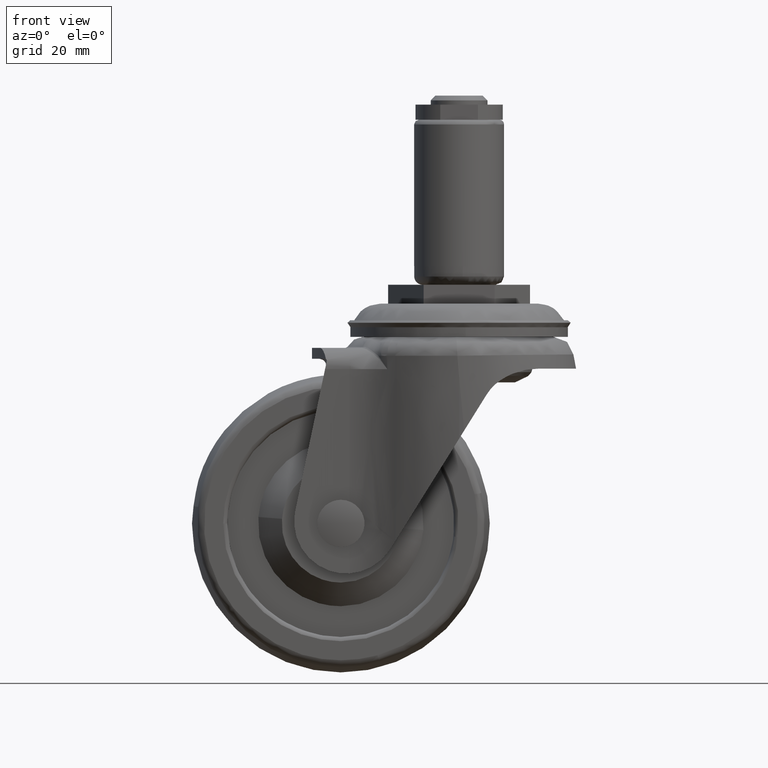
[diagram: clean part render]
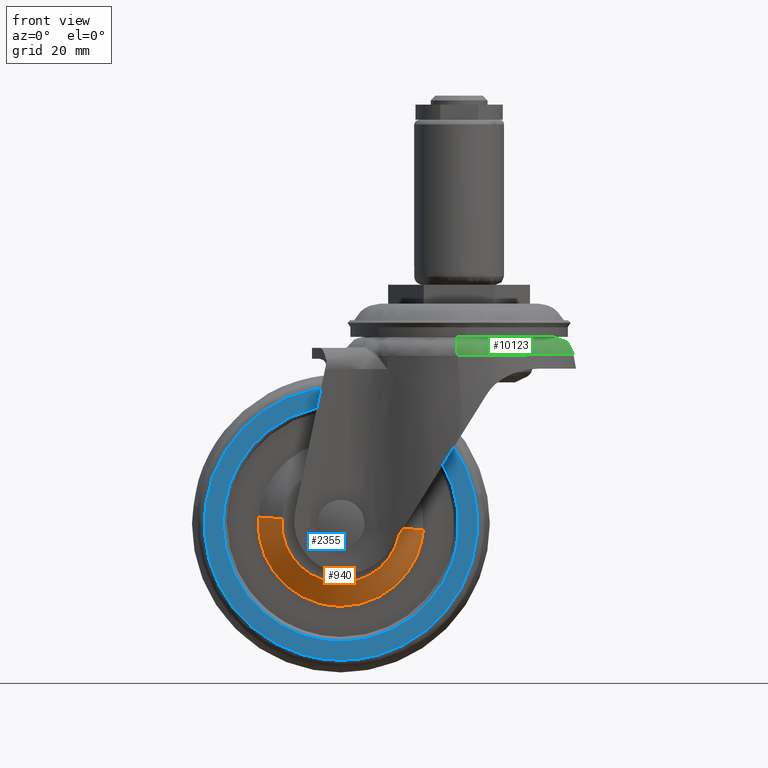
[diagram: same view with three faces highlighted in distinct colors, each labeled with its STEP entity id]
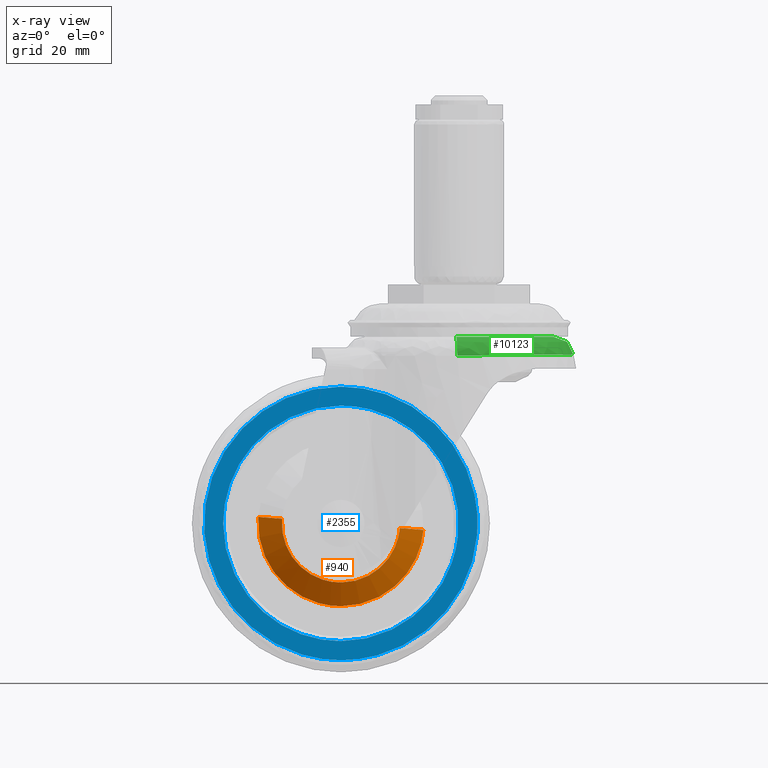
[diagram: x-ray of the same camera — body ghosted, the three highlighted faces saturated]
A machine part, front view with three faces highlighted in distinct colors.
The next image is the same camera in x-ray (body ghosted, the three faces saturated) — at least one of them is partly hidden behind the body in this view.
Their STEP definitions:

[orange] entity #940 — the highlighted face is a freeform B-spline surface patch.
#842=CARTESIAN_POINT('',(-12.661631135483390,-13.087498249481150,-51.471150689069191));
#843=CARTESIAN_POINT('',(-13.632681824552582,-13.087498249481149,-63.809519553585815));
#844=CARTESIAN_POINT('',(-25.971050689069202,-13.087498249481150,-62.838468864516607));
#845=CARTESIAN_POINT('',(-38.309419553585798,-13.087498249481149,-61.867418175447412));
#846=CARTESIAN_POINT('',(-37.338368864516610,-13.087498249481150,-49.529049310930802));
#847=CARTESIAN_POINT('',(-7.426356731801711,-9.410384315035941,-51.883175720334179));
#848=CARTESIAN_POINT('',(-8.809432452135894,-9.410384315035941,-69.456818988532461));
#849=CARTESIAN_POINT('',(-26.383075720334180,-9.410384315035941,-68.073743268198285));
#850=CARTESIAN_POINT('',(-43.956718988532472,-9.410384315035941,-66.690667547864123));
#851=CARTESIAN_POINT('',(-42.573643268198289,-9.410384315035941,-49.117024279665813));
#859=(BOUNDED_SURFACE()B_SPLINE_SURFACE(2,1,((#842,#847),(#843,#848),(#844,#849),(#845,#850),(#846,#851)),.UNSPECIFIED.,.F.,.F.,.U.)B_SPLINE_SURFACE_WITH_KNOTS((3,2,3),(2,2),(0.0,29.207000964607609,58.414001929215210),(0.0,6.410852485834051),.UNSPECIFIED.)GEOMETRIC_REPRESENTATION_ITEM()RATIONAL_B_SPLINE_SURFACE(((1.0,1.0),(0.707106781186548,0.707106781186548),(1.0,1.0),(0.707106781186548,0.707106781186548),(1.0,1.0)))REPRESENTATION_ITEM('')SURFACE());
#860=CARTESIAN_POINT('',(-25.0,-9.500070020754119,-68.0));
#861=VERTEX_POINT('',#860);
#862=CARTESIAN_POINT('',(-7.554046351389234,-9.500070020731169,-51.873126329562048));
#863=VERTEX_POINT('',#862);
#864=CARTESIAN_POINT('',(-25.0,-9.500070020754119,-68.0));
#865=CARTESIAN_POINT('',(-8.823258835461669,-9.500070020754119,-68.0));
#866=CARTESIAN_POINT('',(-7.554046351389235,-9.500070020731169,-51.873126329562048));
#874=(BOUNDED_CURVE()B_SPLINE_CURVE(2,(#864,#865,#866),.UNSPECIFIED.,.F.,.U.)B_SPLINE_CURVE_WITH_KNOTS((3,3),(0.0,0.236331300628212),.UNSPECIFIED.)CURVE()GEOMETRIC_REPRESENTATION_ITEM()RATIONAL_B_SPLINE_CURVE((1.0,0.723120658610533,0.969723356162310))REPRESENTATION_ITEM(''));
#875=EDGE_CURVE('',#861,#863,#874,.T.);
#876=ORIENTED_EDGE('',*,*,#875,.T.);
#877=CARTESIAN_POINT('',(-12.537055896846930,-12.999999999999430,-51.480954972983668));
#878=VERTEX_POINT('',#877);
#879=CARTESIAN_POINT('',(-12.537055896846930,-12.999999999999430,-51.480954972983668));
#880=CARTESIAN_POINT('',(-7.554046351389234,-9.500070020731169,-51.873126329562048));
#881=QUASI_UNIFORM_CURVE('',1,(#879,#880),.UNSPECIFIED.,.F.,.U.);
#882=EDGE_CURVE('',#878,#863,#881,.T.);
#883=ORIENTED_EDGE('',*,*,#882,.F.);
#884=CARTESIAN_POINT('',(-25.0,-13.0,-63.001582000000013));
#885=VERTEX_POINT('',#884);
#886=CARTESIAN_POINT('',(-25.0,-13.0,-63.001582000000013));
#887=CARTESIAN_POINT('',(-13.443748907574314,-13.0,-63.001582000000006));
#888=CARTESIAN_POINT('',(-12.537055896846928,-12.999999999999437,-51.480954972983668));
#896=(BOUNDED_CURVE()B_SPLINE_CURVE(2,(#886,#887,#888),.UNSPECIFIED.,.F.,.U.)B_SPLINE_CURVE_WITH_KNOTS((3,3),(0.0,0.236331300632611),.UNSPECIFIED.)CURVE()GEOMETRIC_REPRESENTATION_ITEM()RATIONAL_B_SPLINE_CURVE((1.0,0.723120658605380,0.969723356171490))REPRESENTATION_ITEM(''));
#897=EDGE_CURVE('',#885,#878,#896,.T.);
#898=ORIENTED_EDGE('',*,*,#897,.F.);
#899=CARTESIAN_POINT('',(-37.462944103153077,-12.999999999999430,-49.519245027016332));
#900=VERTEX_POINT('',#899);
#901=CARTESIAN_POINT('',(-37.462944103153077,-12.999999999999432,-49.519245027016332));
#902=CARTESIAN_POINT('',(-37.501482000000017,-13.000000000000004,-50.008915434459851));
#903=CARTESIAN_POINT('',(-37.501482000000017,-13.0,-50.500100000000003));
#904=CARTESIAN_POINT('',(-37.501482000000010,-13.000000000000002,-63.001582000000006));
#905=CARTESIAN_POINT('',(-25.0,-13.0,-63.001582000000013));
#913=(BOUNDED_CURVE()B_SPLINE_CURVE(2,(#901,#902,#903,#904,#905),.UNSPECIFIED.,.F.,.U.)B_SPLINE_CURVE_WITH_KNOTS((3,2,3),(0.736331300632611,0.750000000000000,1.0),.UNSPECIFIED.)CURVE()GEOMETRIC_REPRESENTATION_ITEM()RATIONAL_B_SPLINE_CURVE((0.969723356171490,0.983986122581168,1.0,0.707106781186548,1.0))REPRESENTATION_ITEM(''));
#914=EDGE_CURVE('',#900,#885,#913,.T.);
#915=ORIENTED_EDGE('',*,*,#914,.F.);
#916=CARTESIAN_POINT('',(-42.445953648610768,-9.500070020731171,-49.127073670437937));
#917=VERTEX_POINT('',#916);
#918=CARTESIAN_POINT('',(-37.462944103153077,-12.999999999999430,-49.519245027016332));
#919=CARTESIAN_POINT('',(-42.445953648610768,-9.500070020731171,-49.127073670437937));
#920=QUASI_UNIFORM_CURVE('',1,(#918,#919),.UNSPECIFIED.,.F.,.U.);
#921=EDGE_CURVE('',#900,#917,#920,.T.);
#922=ORIENTED_EDGE('',*,*,#921,.T.);
#923=CARTESIAN_POINT('',(-42.445953648610761,-9.500070020731171,-49.127073670437944));
#924=CARTESIAN_POINT('',(-42.499899999999997,-9.500070020754121,-49.812527056143644));
#925=CARTESIAN_POINT('',(-42.499899999999997,-9.500070020754119,-50.500100000000003));
#926=CARTESIAN_POINT('',(-42.499900000000004,-9.500070020754119,-68.0));
#927=CARTESIAN_POINT('',(-25.0,-9.500070020754119,-68.0));
#935=(BOUNDED_CURVE()B_SPLINE_CURVE(2,(#923,#924,#925,#926,#927),.UNSPECIFIED.,.F.,.U.)B_SPLINE_CURVE_WITH_KNOTS((3,2,3),(0.736331300628212,0.750000000000000,1.0),.UNSPECIFIED.)CURVE()GEOMETRIC_REPRESENTATION_ITEM()RATIONAL_B_SPLINE_CURVE((0.969723356162310,0.983986122576015,1.0,0.707106781186547,1.0))REPRESENTATION_ITEM(''));
#936=EDGE_CURVE('',#917,#861,#935,.T.);
#937=ORIENTED_EDGE('',*,*,#936,.T.);
#938=EDGE_LOOP('',(#876,#883,#898,#915,#922,#937));
#939=FACE_OUTER_BOUND('',#938,.T.);
#940=ADVANCED_FACE('',(#939),#859,.T.);

[blue] entity #2355 — the highlighted face is a freeform B-spline surface patch.
#1813=CARTESIAN_POINT('',(3.275566400251787,-10.500000000000000,-44.366040196275193));
#1814=VERTEX_POINT('',#1813);
#1828=CARTESIAN_POINT('',(-17.258835987130130,-10.500000000000000,-78.378563456175925));
#1829=VERTEX_POINT('',#1828);
#1830=CARTESIAN_POINT('',(-17.258835987130137,-10.500000000000000,-78.378563456175925));
#1831=CARTESIAN_POINT('',(3.933274000000098,-10.500000000000002,-72.494035431541334));
#1832=CARTESIAN_POINT('',(3.933274000000098,-10.500000000000000,-50.500100000000003));
#1833=CARTESIAN_POINT('',(3.933274000000099,-10.500000000000000,-47.397809658676557));
#1834=CARTESIAN_POINT('',(3.275566400251788,-10.500000000000000,-44.366040196275193));
#1842=(BOUNDED_CURVE()B_SPLINE_CURVE(2,(#1830,#1831,#1832,#1833,#1834),.UNSPECIFIED.,.F.,.U.)B_SPLINE_CURVE_WITH_KNOTS((3,2,3),(0.045601389209871,0.250000000000000,0.286296741474310),.UNSPECIFIED.)CURVE()GEOMETRIC_REPRESENTATION_ITEM()RATIONAL_B_SPLINE_CURVE((0.912639460333053,0.760532131858724,1.0,0.957475722228598,0.927299386190399))REPRESENTATION_ITEM(''));
#1843=EDGE_CURVE('',#1829,#1814,#1842,.T.);
#1912=CARTESIAN_POINT('',(-25.0,-10.500000000000000,-79.433374000000100));
#1913=VERTEX_POINT('',#1912);
#1914=CARTESIAN_POINT('',(-25.0,-10.500000000000000,-79.433374000000100));
#1915=CARTESIAN_POINT('',(-21.057553782720426,-10.500000000000000,-79.433374000000100));
#1916=CARTESIAN_POINT('',(-17.258835987130134,-10.499999999999998,-78.378563456175925));
#1924=(BOUNDED_CURVE()B_SPLINE_CURVE(2,(#1914,#1915,#1916),.UNSPECIFIED.,.F.,.U.)B_SPLINE_CURVE_WITH_KNOTS((3,3),(0.0,0.045601389209871),.UNSPECIFIED.)CURVE()GEOMETRIC_REPRESENTATION_ITEM()RATIONAL_B_SPLINE_CURVE((1.0,0.946574649327823,0.912639460333053))REPRESENTATION_ITEM(''));
#1925=EDGE_CURVE('',#1913,#1829,#1924,.T.);
#1927=CARTESIAN_POINT('',(-25.0,-10.500000000000000,-21.566825999999899));
#1928=VERTEX_POINT('',#1927);
#1929=CARTESIAN_POINT('',(-25.0,-10.500000000000000,-21.566825999999899));
#1930=CARTESIAN_POINT('',(-53.933274000000104,-10.500000000000000,-21.566825999999896));
#1931=CARTESIAN_POINT('',(-53.933274000000097,-10.500000000000000,-50.500100000000003));
#1932=CARTESIAN_POINT('',(-53.933274000000104,-10.500000000000000,-79.433374000000100));
#1933=CARTESIAN_POINT('',(-25.0,-10.500000000000000,-79.433374000000100));
#1941=(BOUNDED_CURVE()B_SPLINE_CURVE(2,(#1929,#1930,#1931,#1932,#1933),.UNSPECIFIED.,.F.,.U.)B_SPLINE_CURVE_WITH_KNOTS((3,2,3),(0.500000000000000,0.750000000000000,1.0),.UNSPECIFIED.)CURVE()GEOMETRIC_REPRESENTATION_ITEM()RATIONAL_B_SPLINE_CURVE((1.0,0.707106781186547,1.0,0.707106781186547,1.0))REPRESENTATION_ITEM(''));
#1942=EDGE_CURVE('',#1928,#1913,#1941,.T.);
#1944=CARTESIAN_POINT('',(3.275566400251787,-10.500000000000000,-44.366040196275193));
#1945=CARTESIAN_POINT('',(-1.670461618122384,-10.500000000000000,-21.566825999999903));
#1946=CARTESIAN_POINT('',(-25.0,-10.500000000000000,-21.566825999999899));
#1954=(BOUNDED_CURVE()B_SPLINE_CURVE(2,(#1944,#1945,#1946),.UNSPECIFIED.,.F.,.U.)B_SPLINE_CURVE_WITH_KNOTS((3,3),(0.286296741474310,0.500000000000000),.UNSPECIFIED.)CURVE()GEOMETRIC_REPRESENTATION_ITEM()RATIONAL_B_SPLINE_CURVE((0.927299386190399,0.749631058957949,1.0))REPRESENTATION_ITEM(''));
#1955=EDGE_CURVE('',#1814,#1928,#1954,.T.);
#2035=CARTESIAN_POINT('',(-0.266639526913281,-10.500000000000000,-53.375147763758740));
#2036=VERTEX_POINT('',#2035);
#2037=CARTESIAN_POINT('',(-25.0,-10.500000000000000,-25.600200000000001));
#2038=VERTEX_POINT('',#2037);
#2039=CARTESIAN_POINT('',(-0.266639526913281,-10.500000000000004,-53.375147763758740));
#2040=CARTESIAN_POINT('',(-0.100100000000002,-10.499999999999996,-51.942447352065500));
#2041=CARTESIAN_POINT('',(-0.100100000000002,-10.500000000000000,-50.500100000000003));
#2042=CARTESIAN_POINT('',(-0.100100000000002,-10.500000000000002,-25.600199999999990));
#2043=CARTESIAN_POINT('',(-25.0,-10.500000000000000,-25.600200000000001));
#2051=(BOUNDED_CURVE()B_SPLINE_CURVE(2,(#2039,#2040,#2041,#2042,#2043),.UNSPECIFIED.,.F.,.U.)B_SPLINE_CURVE_WITH_KNOTS((3,2,3),(0.229999999998493,0.250000000000000,0.500000000000000),.UNSPECIFIED.)CURVE()GEOMETRIC_REPRESENTATION_ITEM()RATIONAL_B_SPLINE_CURVE((0.956886118187694,0.976568542493158,1.0,0.707106781186548,1.0))REPRESENTATION_ITEM(''));
#2052=EDGE_CURVE('',#2036,#2038,#2051,.T.);
#2054=CARTESIAN_POINT('',(-49.899899996519402,-10.500000000000000,-50.500099999999989));
#2055=VERTEX_POINT('',#2054);
#2056=CARTESIAN_POINT('',(-25.0,-10.500000000000000,-25.600200000000001));
#2057=CARTESIAN_POINT('',(-49.899899999999867,-10.500000000000000,-25.600200000000001));
#2058=CARTESIAN_POINT('',(-49.899899996519402,-10.500000000000002,-50.500099999999989));
#2066=(BOUNDED_CURVE()B_SPLINE_CURVE(2,(#2056,#2057,#2058),.UNSPECIFIED.,.F.,.U.)B_SPLINE_CURVE_WITH_KNOTS((3,3),(0.500000000000000,0.749999999999999),.UNSPECIFIED.)CURVE()GEOMETRIC_REPRESENTATION_ITEM()RATIONAL_B_SPLINE_CURVE((1.0,0.707106781186549,0.999999999999998))REPRESENTATION_ITEM(''));
#2067=EDGE_CURVE('',#2038,#2055,#2066,.T.);
#2125=CARTESIAN_POINT('',(-25.0,-10.500000000000000,-75.399999999999991));
#2126=VERTEX_POINT('',#2125);
#2127=CARTESIAN_POINT('',(-25.0,-10.500000000000000,-75.399999999999991));
#2128=CARTESIAN_POINT('',(-2.826845698778045,-10.500000000000000,-75.399999999999991));
#2129=CARTESIAN_POINT('',(-0.266639526913281,-10.500000000000004,-53.375147763758740));
#2137=(BOUNDED_CURVE()B_SPLINE_CURVE(2,(#2127,#2128,#2129),.UNSPECIFIED.,.F.,.U.)B_SPLINE_CURVE_WITH_KNOTS((3,3),(0.0,0.229999999998493),.UNSPECIFIED.)CURVE()GEOMETRIC_REPRESENTATION_ITEM()RATIONAL_B_SPLINE_CURVE((1.0,0.730538238693389,0.956886118187694))REPRESENTATION_ITEM(''));
#2138=EDGE_CURVE('',#2126,#2036,#2137,.T.);
#2144=CARTESIAN_POINT('',(-49.899899996519423,-10.500000000000011,-50.500100000000010));
#2145=CARTESIAN_POINT('',(-49.899900000000002,-10.500000000000000,-75.399999999999977));
#2146=CARTESIAN_POINT('',(-25.0,-10.500000000000000,-75.399999999999991));
#2154=(BOUNDED_CURVE()B_SPLINE_CURVE(2,(#2144,#2145,#2146),.UNSPECIFIED.,.F.,.U.)B_SPLINE_CURVE_WITH_KNOTS((3,3),(0.750000000000000,1.0),.UNSPECIFIED.)CURVE()GEOMETRIC_REPRESENTATION_ITEM()RATIONAL_B_SPLINE_CURVE((1.0,0.707106781186547,1.0))REPRESENTATION_ITEM(''));
#2155=EDGE_CURVE('',#2055,#2126,#2154,.T.);
#2338=CARTESIAN_POINT('',(-56.823606501975128,-10.500000000000000,-18.676391703086690));
#2339=CARTESIAN_POINT('',(-56.823606501975128,-10.500000000000000,-82.323805192709784));
#2340=CARTESIAN_POINT('',(6.821588245264989,-10.500000000000000,-18.676391703086690));
#2341=CARTESIAN_POINT('',(6.821588245264989,-10.500000000000000,-82.323805192709784));
#2342=B_SPLINE_SURFACE_WITH_KNOTS('',1,1,((#2338,#2340),(#2339,#2341)),.UNSPECIFIED.,.F.,.F.,.U.,(2,2),(2,2),(0.0,63.647413489623098),(0.0,63.645194747240112),.UNSPECIFIED.);
#2343=ORIENTED_EDGE('',*,*,#1925,.T.);
#2344=ORIENTED_EDGE('',*,*,#1843,.T.);
#2345=ORIENTED_EDGE('',*,*,#1955,.T.);
#2346=ORIENTED_EDGE('',*,*,#1942,.T.);
#2347=EDGE_LOOP('',(#2343,#2344,#2345,#2346));
#2348=FACE_OUTER_BOUND('',#2347,.T.);
#2349=ORIENTED_EDGE('',*,*,#2067,.F.);
#2350=ORIENTED_EDGE('',*,*,#2052,.F.);
#2351=ORIENTED_EDGE('',*,*,#2138,.F.);
#2352=ORIENTED_EDGE('',*,*,#2155,.F.);
#2353=EDGE_LOOP('',(#2349,#2350,#2351,#2352));
#2354=FACE_BOUND('',#2353,.T.);
#2355=ADVANCED_FACE('',(#2348,#2354),#2342,.T.);

[green] entity #10123 — the highlighted face is a freeform B-spline surface patch.
#9632=CARTESIAN_POINT('',(-0.548214048981867,-20.742756840798400,-9.038143999999999));
#9633=VERTEX_POINT('',#9632);
#9647=CARTESIAN_POINT('',(-0.549039422027000,20.742735010433400,-9.038143999999999));
#9648=VERTEX_POINT('',#9647);
#9649=CARTESIAN_POINT('',(-0.548214048981867,-20.742756840798400,-9.038143999999999));
#9650=CARTESIAN_POINT('',(2.048933060812649,-20.673300005683060,-9.038143999999999));
#9651=CARTESIAN_POINT('',(4.626625896348884,-20.134525418431739,-9.038143999999999));
#9652=CARTESIAN_POINT('',(8.305226929931230,-18.623712663066751,-9.038143999999999));
#9653=CARTESIAN_POINT('',(9.503655719417228,-17.990379793052750,-9.038143999999999));
#9654=CARTESIAN_POINT('',(11.769736164709840,-16.499303290795151,-9.038143999999999));
#9655=CARTESIAN_POINT('',(12.847512229565259,-15.630152649064749,-9.038143999999999));
#9656=CARTESIAN_POINT('',(14.786964494903859,-13.722118109686621,-9.038143999999999));
#9657=CARTESIAN_POINT('',(15.655052400870851,-12.682964174964161,-9.038143999999999));
#9658=CARTESIAN_POINT('',(17.185796502696849,-10.434560248673320,-9.038143999999999));
#9659=CARTESIAN_POINT('',(17.847396981423550,-9.219284329836171,-9.038143999999999));
#9660=CARTESIAN_POINT('',(19.427591310467449,-5.473673701070440,-9.038143999999999));
#9661=CARTESIAN_POINT('',(19.986612036334101,-2.753023787085740,-9.038143999999999));
#9662=CARTESIAN_POINT('',(19.988121618733700,1.365446820973372,-9.038143999999999));
#9663=CARTESIAN_POINT('',(19.852032975233548,2.715366204945645,-9.038143999999999));
#9664=CARTESIAN_POINT('',(19.317864877714999,5.370121536856360,-9.038143999999999));
#9665=CARTESIAN_POINT('',(18.913138828228149,6.688818126676170,-9.038143999999999));
#9666=CARTESIAN_POINT('',(17.857187379969400,9.201220274641988,-9.038143999999999));
#9667=CARTESIAN_POINT('',(17.211213925589899,10.392028283634300,-9.038143999999999));
#9668=CARTESIAN_POINT('',(15.686525809032700,12.643370877924900,-9.038143999999999));
#9669=CARTESIAN_POINT('',(14.800190019345640,13.707329333034499,-9.038143999999999));
#9670=CARTESIAN_POINT('',(12.866834849775080,15.613625753364900,-9.038143999999999));
#9671=CARTESIAN_POINT('',(11.812946021692699,16.468481075604451,-9.038143999999999));
#9672=CARTESIAN_POINT('',(9.529442042698141,17.977052606894901,-9.038143999999999));
#9673=CARTESIAN_POINT('',(8.315690422402911,18.618031692778100,-9.038143999999999));
#9674=CARTESIAN_POINT('',(4.667025709097595,20.121626403142510,-9.038143999999999));
#9675=CARTESIAN_POINT('',(2.062181236268581,20.672394524805650,-9.038143999999999));
#9676=CARTESIAN_POINT('',(-0.549039422026997,20.742735010433400,-9.038143999999999));
#9677=B_SPLINE_CURVE_WITH_KNOTS('',3,(#9649,#9650,#9651,#9652,#9653,#9654,#9655,#9656,#9657,#9658,#9659,#9660,#9661,#9662,#9663,#9664,#9665,#9666,#9667,#9668,#9669,#9670,#9671,#9672,#9673,#9674,#9675,#9676),.UNSPECIFIED.,.F.,.U.,(4,2,2,2,2,2,2,2,2,2,2,2,2,4),(0.000425464371113,0.009569384166159,0.014354076249238,0.019138768332318,0.023923460415397,0.028708152498476,0.038277536664635,0.043062228747715,0.047846920830794,0.052631612913873,0.057416304996953,0.062200997080032,0.066985689163111,0.076132620068310),.UNSPECIFIED.);
#9678=EDGE_CURVE('',#9633,#9648,#9677,.T.);
#9864=CARTESIAN_POINT('',(-0.374123405536636,24.747172038186800,-13.036091615854801));
#9865=VERTEX_POINT('',#9864);
#9866=CARTESIAN_POINT('',(-0.549039422027000,20.742735010433400,-9.038143999999999));
#9867=CARTESIAN_POINT('',(-0.536210081806120,21.814048799401672,-9.038144000000317));
#9868=CARTESIAN_POINT('',(-0.522637624674607,22.836539415029090,-9.467033766601698));
#9869=CARTESIAN_POINT('',(-0.498822837622801,23.585907365146429,-10.222529151669390));
#9870=CARTESIAN_POINT('',(-0.487136597880271,23.953632405113801,-10.593261007262740));
#9871=CARTESIAN_POINT('',(-0.473303411447238,24.245223790328829,-11.032287392050740));
#9872=CARTESIAN_POINT('',(-0.454385978695800,24.444338020402711,-11.514776807572151));
#9873=CARTESIAN_POINT('',(-0.435464050379446,24.643499568257958,-11.997380882546420));
#9874=CARTESIAN_POINT('',(-0.414687502217201,24.746308302276109,-12.515242441219909));
#9875=CARTESIAN_POINT('',(-0.374123405536636,24.747172038186800,-13.036091615854801));
#9876=B_SPLINE_CURVE_WITH_KNOTS('',3,(#9866,#9867,#9868,#9869,#9870,#9871,#9872,#9873,#9874,#9875),.UNSPECIFIED.,.F.,.U.,(4,3,3,4),(0.0,3.214171812090395,4.791409613464031,6.369022231812976),.UNSPECIFIED.);
#9877=EDGE_CURVE('',#9648,#9865,#9876,.T.);
#9895=CARTESIAN_POINT('',(-0.910649418653932,-20.721173693811366,-9.038143999999997));
#9896=CARTESIAN_POINT('',(-0.910754478427102,-20.735267359180906,-9.038143999999999));
#9897=CARTESIAN_POINT('',(-0.940719176715463,-24.755002199936381,-9.038144000000033));
#9898=CARTESIAN_POINT('',(-0.940676419739296,-24.749266393584229,-13.058423211197056));
#9899=CARTESIAN_POINT('',(-0.940676265226869,-24.749245665893969,-13.072951439165632));
#9900=CARTESIAN_POINT('',(1.805313186808379,-20.694210956204934,-9.038144000000079));
#9901=CARTESIAN_POINT('',(1.807005114848053,-20.708314008717913,-9.038144000000038));
#9902=CARTESIAN_POINT('',(2.283757736399966,-24.682281636051840,-9.038143999988879));
#9903=CARTESIAN_POINT('',(2.282120136295681,-24.773717150237839,-13.009020306691822));
#9904=CARTESIAN_POINT('',(2.282114146283872,-24.774051602958224,-13.023544973554813));
#9905=CARTESIAN_POINT('',(4.507301235154235,-20.153077491914051,-9.038144000000040));
#9906=CARTESIAN_POINT('',(4.510775345447501,-20.166857051708437,-9.038144000000020));
#9907=CARTESIAN_POINT('',(5.479220325422688,-24.008055051380691,-9.038143999994432));
#9908=CARTESIAN_POINT('',(5.513829793248158,-24.184872330888606,-12.964594663717106));
#9909=CARTESIAN_POINT('',(5.513957759550969,-24.185526101517084,-12.979112464948386));
#9910=CARTESIAN_POINT('',(8.293188726471339,-18.598092164791922,-9.038143999999981));
#9911=CARTESIAN_POINT('',(8.299199797717185,-18.610885322923632,-9.038143999999985));
#9912=CARTESIAN_POINT('',(9.951735420320418,-22.127920585623944,-9.038144000002818));
#9913=CARTESIAN_POINT('',(10.072169610219683,-22.390030678024903,-12.905821312069758));
#9914=CARTESIAN_POINT('',(10.072621137749433,-22.391013371748691,-12.920321868630976));
#9915=CARTESIAN_POINT('',(9.489990649455883,-17.965578476600321,-9.038144000000001));
#9916=CARTESIAN_POINT('',(9.496814172418951,-17.977962778532628,-9.038143999999996));
#9917=CARTESIAN_POINT('',(11.364890984700951,-21.368414807678391,-9.038144000000024));
#9918=CARTESIAN_POINT('',(11.518587432981251,-21.651613348031109,-12.888264014521694));
#9919=CARTESIAN_POINT('',(11.519166077121687,-21.652679548179439,-12.902759140539789));
#9920=CARTESIAN_POINT('',(11.752964937418534,-16.476461951734265,-9.038143999999996));
#9921=CARTESIAN_POINT('',(11.761339723921372,-16.487867875388574,-9.038143999999996));
#9922=CARTESIAN_POINT('',(14.036729621480870,-19.586803406052070,-9.038144000000020));
#9923=CARTESIAN_POINT('',(14.261817265822504,-19.896846418984047,-12.856043612419521));
#9924=CARTESIAN_POINT('',(14.262671160135930,-19.898022600672885,-12.870527227358798));
#9925=CARTESIAN_POINT('',(12.829252358887500,-15.608469012314178,-9.038144000000019));
#9926=CARTESIAN_POINT('',(12.838370622540552,-15.619296970536771,-9.038144000000013));
#9927=CARTESIAN_POINT('',(15.307180625618756,-18.551014300722102,-9.038143999997239));
#9928=CARTESIAN_POINT('',(15.570832179225055,-18.866703786186619,-12.841090595520932));
#9929=CARTESIAN_POINT('',(15.571835846353162,-18.867905550996699,-12.855567629453068));
#9930=CARTESIAN_POINT('',(14.765997697118580,-13.703002825380839,-9.038143999999978));
#9931=CARTESIAN_POINT('',(14.776467928724285,-13.712548463009439,-9.038143999999988));
#9932=CARTESIAN_POINT('',(17.594210311424270,-16.281464675076506,-9.038144000002795));
#9933=CARTESIAN_POINT('',(17.933037731620850,-16.592651773538250,-12.815567646746612));
#9934=CARTESIAN_POINT('',(17.934335415895234,-16.593843597398998,-12.830034903443918));
#9935=CARTESIAN_POINT('',(15.632862463006667,-12.665260018672457,-9.038143999999990));
#9936=CARTESIAN_POINT('',(15.643943604259022,-12.674101064457396,-9.038143999999990));
#9937=CARTESIAN_POINT('',(18.618300920183469,-15.047180570619064,-9.038144000001401));
#9938=CARTESIAN_POINT('',(18.993866525030157,-15.348454688290182,-12.804788958739413));
#9939=CARTESIAN_POINT('',(18.995308683256159,-15.349611569914780,-12.819252738014139));
#9940=CARTESIAN_POINT('',(17.161432529542743,-10.419940984802235,-9.038144000000006));
#9941=CARTESIAN_POINT('',(17.173599538530713,-10.427241629643364,-9.038144000000008));
#9942=CARTESIAN_POINT('',(20.424710906375985,-12.378025874075890,-9.038143999998631));
#9943=CARTESIAN_POINT('',(20.868259718079479,-12.645662979359686,-12.786214199692283));
#9944=CARTESIAN_POINT('',(20.869970637681512,-12.646695347292095,-12.800671789488952));
#9945=CARTESIAN_POINT('',(17.822086387059990,-9.206345742940020,-9.038143999999976));
#9946=CARTESIAN_POINT('',(17.834726214425416,-9.212807128333459,-9.038143999999988));
#9947=CARTESIAN_POINT('',(21.205777223149298,-10.936063239241779,-9.038144000002792));
#9948=CARTESIAN_POINT('',(21.680560196296817,-11.179724693610332,-12.778455326952193));
#9949=CARTESIAN_POINT('',(21.682395074931826,-11.180666364272682,-12.792910389012713));
#9950=CARTESIAN_POINT('',(19.399996752697064,-5.465959097901042,-9.038144000000038));
#9951=CARTESIAN_POINT('',(19.413777396754412,-5.469811748891348,-9.038144000000019));
#9952=CARTESIAN_POINT('',(23.072709475227477,-6.492738415956596,-9.038143999994480));
#9953=CARTESIAN_POINT('',(23.624236992307249,-6.650451857648112,-12.760996841217619));
#9954=CARTESIAN_POINT('',(23.626378004752027,-6.651064096259813,-12.775448838654455));
#9955=CARTESIAN_POINT('',(19.958195948939142,-2.749136459886783,-9.038143999999955));
#9956=CARTESIAN_POINT('',(19.972386943131514,-2.751077791110098,-9.038143999999981));
#9957=CARTESIAN_POINT('',(23.734593312933551,-3.265748475576549,-9.038144000005635));
#9958=CARTESIAN_POINT('',(24.316047188124834,-3.345294747597105,-12.755777747475085));
#9959=CARTESIAN_POINT('',(24.318307781590082,-3.345604009931379,-12.770231273221924));
#9960=CARTESIAN_POINT('',(19.959703558479429,1.363518773498393,-9.038144000000019));
#9961=CARTESIAN_POINT('',(19.973895538139267,1.364481640432422,-9.038144000000010));
#9962=CARTESIAN_POINT('',(23.736347576813934,1.619748399950552,-9.038143999997201));
#9963=CARTESIAN_POINT('',(24.317875155100563,1.659201820739619,-12.755736051128258));
#9964=CARTESIAN_POINT('',(24.320136044481522,1.659355209544269,-12.770189474671735));
#9965=CARTESIAN_POINT('',(19.823815678618960,2.711533643453532,-9.038143999999962));
#9966=CARTESIAN_POINT('',(19.837907377244644,2.713447622040811,-9.038143999999985));
#9967=CARTESIAN_POINT('',(23.575158671586710,3.221052783253829,-9.038144000004175));
#9968=CARTESIAN_POINT('',(24.149532701176756,3.299494879433806,-12.756953950835033));
#9969=CARTESIAN_POINT('',(24.151764950984234,3.299799737148596,-12.771406750524905));
#9970=CARTESIAN_POINT('',(19.290429308066987,5.362554559707026,-9.038144000000031));
#9971=CARTESIAN_POINT('',(19.304130536876453,5.366333481983809,-9.038144000000010));
#9972=CARTESIAN_POINT('',(22.943179420070827,6.370015931363274,-9.038143999995869));
#9973=CARTESIAN_POINT('',(23.490205431519318,6.521331016722868,-12.762230354695710));
#9974=CARTESIAN_POINT('',(23.492328267366410,6.521918222962948,-12.776682362179921));
#9975=CARTESIAN_POINT('',(18.886291724167091,6.679404296665706,-9.038143999999996));
#9976=CARTESIAN_POINT('',(18.899699018797488,6.684105511078394,-9.038143999999999));
#9977=CARTESIAN_POINT('',(22.464674129429099,7.934149821507168,-9.038144000000012));
#9978=CARTESIAN_POINT('',(22.991194765180193,8.119683079647173,-12.766473113680155));
#9979=CARTESIAN_POINT('',(22.993235735741852,8.120402268777403,-12.780925367682256));
#9980=CARTESIAN_POINT('',(17.831864034223738,9.188307409329845,-9.038144000000001));
#9981=CARTESIAN_POINT('',(17.844510230819182,9.194755950331810,-9.038144000000001));
#9982=CARTESIAN_POINT('',(21.217165010805335,10.914538057946208,-9.038144000000010));
#9983=CARTESIAN_POINT('',(21.692387558202803,11.157826071713728,-12.778178380199948));
#9984=CARTESIAN_POINT('',(21.694224187339874,11.158766325616314,-12.792632778784307));
#9985=CARTESIAN_POINT('',(17.186816901413827,10.377469638392087,-9.038144000000004));
#9986=CARTESIAN_POINT('',(17.199000418958274,10.384740013190740,-9.038144000000006));
#9987=CARTESIAN_POINT('',(20.454282556256558,12.327292410491738,-9.038143999998631));
#9988=CARTESIAN_POINT('',(20.898949718751304,12.594124782315969,-12.785491246262948));
#9989=CARTESIAN_POINT('',(20.900665078931056,12.595154122154627,-12.799947115254687));
#9990=CARTESIAN_POINT('',(15.664295010462027,12.625723603571304,-9.038143999999988));
#9991=CARTESIAN_POINT('',(15.675396560511546,12.634536246934120,-9.038143999999990));
#9992=CARTESIAN_POINT('',(18.654950170275626,14.999768419571046,-9.038144000001401));
#9993=CARTESIAN_POINT('',(19.031809150145676,15.300546431240171,-12.803877892984090));
#9994=CARTESIAN_POINT('',(19.033256411761158,15.301701517079486,-12.818339541527957));
#9995=CARTESIAN_POINT('',(14.779206081055197,13.688235379955689,-9.038143999999969));
#9996=CARTESIAN_POINT('',(14.789684873719532,13.697770366795901,-9.038143999999980));
#9997=CARTESIAN_POINT('',(17.609617335151892,16.263716632875447,-9.038144000004174));
#9998=CARTESIAN_POINT('',(17.948970038090607,16.574770319261603,-12.815181631748572));
#9999=CARTESIAN_POINT('',(17.950269786652960,16.575961680279786,-12.829647994294847));
#10000=CARTESIAN_POINT('',(12.848549956255356,15.591966331173939,-9.038144000000026));
#10001=CARTESIAN_POINT('',(12.857680717412777,15.602782200056085,-9.038144000000013));
#10002=CARTESIAN_POINT('',(15.329721981006195,18.531045651187046,-9.038143999995860));
#10003=CARTESIAN_POINT('',(15.594063042427358,18.846756224784738,-12.840513141701219));
#10004=CARTESIAN_POINT('',(15.595069396459243,18.847958144028535,-12.854988870503654));
#10005=CARTESIAN_POINT('',(11.796118728141108,16.445685689210279,-9.038143999999983));
#10006=CARTESIAN_POINT('',(11.804521515977296,16.457068672155632,-9.038143999999992));
#10007=CARTESIAN_POINT('',(14.087194253298058,19.549331067123113,-9.038144000001417));
#10008=CARTESIAN_POINT('',(14.313692944461456,19.859692997715893,-12.854729735512791));
#10009=CARTESIAN_POINT('',(14.314552314094561,19.860870556919668,-12.869210427945989));
#10010=CARTESIAN_POINT('',(9.515743484519700,17.952271939039672,-9.038144000000010));
#10011=CARTESIAN_POINT('',(9.522583731747519,17.964645934345764,-9.038144000000004));
#10012=CARTESIAN_POINT('',(11.395070997705595,21.351972132943121,-9.038143999998626));
#10013=CARTESIAN_POINT('',(11.549471640303496,21.635587527415169,-12.887456451166925));
#10014=CARTESIAN_POINT('',(11.550052987842655,21.636655392864878,-12.901949838521181));
#10015=CARTESIAN_POINT('',(8.303638799229107,18.592419841313937,-9.038144000000022));
#10016=CARTESIAN_POINT('',(8.309656572171715,18.605208683491327,-9.038144000000010));
#10017=CARTESIAN_POINT('',(9.963974690277093,22.120930118217501,-9.038143999997249));
#10018=CARTESIAN_POINT('',(10.084707142438862,22.383198607133533,-12.905495643789550));
#10019=CARTESIAN_POINT('',(10.085159804596946,22.384181930325131,-12.919995504512558));
#10020=CARTESIAN_POINT('',(4.549374010105737,20.139645507450219,-9.038143999999958));
#10021=CARTESIAN_POINT('',(4.552875168594739,20.153413880705575,-9.038143999999978));
#10022=CARTESIAN_POINT('',(5.528704044375851,23.990879747307559,-9.038144000005552));
#10023=CARTESIAN_POINT('',(5.564120821341389,24.168741100886447,-12.963218653388557));
#10024=CARTESIAN_POINT('',(5.564251793567388,24.169398837117505,-12.977733688595865));
#10025=CARTESIAN_POINT('',(1.817718507516218,20.694091891293585,-9.038143999999884));
#10026=CARTESIAN_POINT('',(1.819418858653448,20.708195011204783,-9.038143999999940));
#10027=CARTESIAN_POINT('',(2.298516869680492,24.681948755822894,-9.038144000016812));
#10028=CARTESIAN_POINT('',(2.296858007845400,24.773828992115202,-13.008790245363258));
#10029=CARTESIAN_POINT('',(2.296851939706789,24.774165091239187,-13.023314922035093));
#10030=CARTESIAN_POINT('',(-0.910649418653902,20.721173693811366,-9.038143999999997));
#10031=CARTESIAN_POINT('',(-0.910754478427073,20.735267359180906,-9.038143999999999));
#10032=CARTESIAN_POINT('',(-0.940719176715434,24.755002199936346,-9.038144000000019));
#10033=CARTESIAN_POINT('',(-0.940676419739268,24.749266393584229,-13.058423211197056));
#10034=CARTESIAN_POINT('',(-0.940676265226841,24.749245665893969,-13.072951439165632));
#10042=(BOUNDED_SURFACE()B_SPLINE_SURFACE(2,3,((#9895,#9900,#9905,#9910,#9915,#9920,#9925,#9930,#9935,#9940,#9945,#9950,#9955,#9960,#9965,#9970,#9975,#9980,#9985,#9990,#9995,#10000,#10005,#10010,#10015,#10020,#10025,#10030),(#9896,#9901,#9906,#9911,#9916,#9921,#9926,#9931,#9936,#9941,#9946,#9951,#9956,#9961,#9966,#9971,#9976,#9981,#9986,#9991,#9996,#10001,#10006,#10011,#10016,#10021,#10026,#10031),(#9897,#9902,#9907,#9912,#9917,#9922,#9927,#9932,#9937,#9942,#9947,#9952,#9957,#9962,#9967,#9972,#9977,#9982,#9987,#9992,#9997,#10002,#10007,#10012,#10017,#10022,#10027,#10032),(#9898,#9903,#9908,#9913,#9918,#9923,#9928,#9933,#9938,#9943,#9948,#9953,#9958,#9963,#9968,#9973,#9978,#9983,#9988,#9993,#9998,#10003,#10008,#10013,#10018,#10023,#10028,#10033),(#9899,#9904,#9909,#9914,#9919,#9924,#9929,#9934,#9939,#9944,#9949,#9954,#9959,#9964,#9969,#9974,#9979,#9984,#9989,#9994,#9999,#10004,#10009,#10014,#10019,#10024,#10029,#10034)),.UNSPECIFIED.,.F.,.F.,.U.)B_SPLINE_SURFACE_WITH_KNOTS((3,1,1,3),(4,2,2,2,2,2,2,2,2,2,2,2,2,4),(0.0,0.033179759593228,6.667283945418752,6.701490498966225),(0.0,9.953699025322743,14.930548537984100,19.907398050645480,24.884247563306861,29.861097075968239,39.814796101290959,44.791645613952333,49.768495126613722,54.745344639275103,59.722194151936478,64.699043664597866,69.675893177259240,79.629592202581904),.UNSPECIFIED.)GEOMETRIC_REPRESENTATION_ITEM()RATIONAL_B_SPLINE_SURFACE(((1.002934795507582,1.002849243578634,1.002772296761152,1.002671897825455,1.002641455930647,1.002585652258768,1.002560067635627,1.002515185419218,1.002495714008199,1.002462000169673,1.002447789182378,1.002414230826604,1.002402862671971,1.002402831416838,1.002405626472299,1.002416719661219,1.002425157435850,1.002447578174130,1.002461447367873,1.002495009390267,1.002514885313313,1.002559611897262,1.002584604018024,1.002640799696990,1.002671634297294,1.002771148591866,1.002848827328394,1.002934795507582),(1.001467397753791,1.001424621789317,1.001386148380576,1.001335948912728,1.001320727965324,1.001292826129384,1.001280033817813,1.001257592709609,1.001247857004100,1.001231000084836,1.001223894591189,1.001207115413302,1.001201431335985,1.001201415708419,1.001202813236149,1.001208359830610,1.001212578717925,1.001223789087065,1.001230723683936,1.001247504695134,1.001257442656657,1.001279805948631,1.001292302009012,1.001320399848495,1.001335817148647,1.001385574295933,1.001424413664197,1.001467397753791),(0.706602166500258,0.715154977263443,0.722847516483147,0.732884614517086,0.735927956365348,0.741506769740435,0.744064519669167,0.748551491597205,0.750498090531733,0.753868535646945,0.755289238681744,0.758644139851010,0.759780638776241,0.759783763419257,0.759504335699514,0.758395325689267,0.757551783169943,0.755310333631134,0.753923800434576,0.750568532705375,0.748581493831451,0.744110080815985,0.741611564627334,0.735993561458720,0.732910959995441,0.722962301441842,0.715196590697231,0.706602166500259),(1.001512808424650,1.001468708698273,1.001429044676219,1.001377291715798,1.001361599734939,1.001332834437757,1.001319646250257,1.001296510670648,1.001286473680148,1.001269095099999,1.001261769716936,1.001244471283979,1.001238611304959,1.001238595193776,1.001240035969952,1.001245754211516,1.001250103658186,1.001261660947840,1.001268810145487,1.001286110468489,1.001296355974098,1.001319411329344,1.001332294097748,1.001361261464078,1.001377155874094,1.001428452825725,1.001468494132431,1.001512808424650),(1.003025616849300,1.002937417396545,1.002858089352438,1.002754583431595,1.002723199469878,1.002665668875513,1.002639292500513,1.002593021341296,1.002572947360296,1.002538190199997,1.002523539433873,1.002488942567958,1.002477222609918,1.002477190387552,1.002480071939903,1.002491508423033,1.002500207316372,1.002523321895681,1.002537620290974,1.002572220936979,1.002592711948195,1.002638822658688,1.002664588195497,1.002722522928155,1.002754311748187,1.002856905651451,1.002936988264861,1.003025616849300)))REPRESENTATION_ITEM('')SURFACE());
#10043=CARTESIAN_POINT('',(-0.372490450672473,-24.747196701459401,-13.035959580757240));
#10044=VERTEX_POINT('',#10043);
#10045=CARTESIAN_POINT('',(-0.548214048981867,-20.742756840798400,-9.038143999999999));
#10046=CARTESIAN_POINT('',(-0.546158135271906,-20.914352315119050,-9.044569300708560));
#10047=CARTESIAN_POINT('',(-0.541818712765087,-21.276539336747280,-9.058131199913145));
#10048=CARTESIAN_POINT('',(-0.534374495546348,-21.838456177026131,-9.176323497465626));
#10049=CARTESIAN_POINT('',(-0.525059100475621,-22.431123119078151,-9.391205179896234));
#10050=CARTESIAN_POINT('',(-0.513052195841334,-23.030676998924520,-9.730142927228712));
#10051=CARTESIAN_POINT('',(-0.497829404701853,-23.603856261626952,-10.205431901554880));
#10052=CARTESIAN_POINT('',(-0.478902809443609,-24.076324047395950,-10.782383612536879));
#10053=CARTESIAN_POINT('',(-0.456628630633876,-24.407217687756599,-11.386709543924260));
#10054=CARTESIAN_POINT('',(-0.434282109292794,-24.602318501657450,-11.932122557117390));
#10055=CARTESIAN_POINT('',(-0.412476716593068,-24.700780350312769,-12.391164835689340));
#10056=CARTESIAN_POINT('',(-0.393595841285878,-24.741412165953250,-12.749211672322730));
#10057=CARTESIAN_POINT('',(-0.378634589878759,-24.745519815565000,-12.952502676989090));
#10058=CARTESIAN_POINT('',(-0.372490450672473,-24.747196701459401,-13.035959580757240));
#10059=B_SPLINE_CURVE_WITH_KNOTS('',3,(#10045,#10046,#10047,#10048,#10049,#10050,#10051,#10052,#10053,#10054,#10055,#10056,#10057,#10058),.UNSPECIFIED.,.F.,.U.,(4,1,1,1,1,1,1,1,1,1,1,4),(0.000118600140761,0.082028365781089,0.173005759181441,0.273046835071027,0.382147087178476,0.500301371811840,0.626778824541121,0.736009710879474,0.827973230075234,0.902652720469437,0.960036256168950,1.0),.UNSPECIFIED.);
#10060=EDGE_CURVE('',#9633,#10044,#10059,.T.);
#10061=ORIENTED_EDGE('',*,*,#10060,.T.);
#10062=CARTESIAN_POINT('',(-0.374123405536636,24.747172038186800,-13.036091615854801));
#10063=CARTESIAN_POINT('',(-0.130458357808917,24.741544482917838,-13.032389946790310));
#10064=CARTESIAN_POINT('',(0.355813692695487,24.730313808410010,-13.025002682087971));
#10065=CARTESIAN_POINT('',(1.082644272773470,24.687084002757238,-13.013935448175060));
#10066=CARTESIAN_POINT('',(1.804834377046261,24.624905831932349,-13.002969377928860));
#10067=CARTESIAN_POINT('',(2.521788524342565,24.542194482832780,-12.992141906778389));
#10068=CARTESIAN_POINT('',(3.232962482304202,24.439775020553419,-12.981491260380659));
#10069=CARTESIAN_POINT('',(3.937818590192311,24.317848533367989,-12.971049535610200));
#10070=CARTESIAN_POINT('',(4.635837978741973,24.176798777337719,-12.960844751499060));
#10071=CARTESIAN_POINT('',(5.326517606978340,24.016976541934898,-12.950900514134419));
#10072=CARTESIAN_POINT('',(6.009371303302414,23.838756126778129,-12.941236317745080));
#10073=CARTESIAN_POINT('',(6.683929704557595,23.642519399308618,-12.931867677019479));
#10074=CARTESIAN_POINT('',(7.349740453058637,23.428659135496670,-12.922806304410550));
#10075=CARTESIAN_POINT('',(8.006368290527048,23.197577237915208,-12.914060275062530));
#10076=CARTESIAN_POINT('',(8.653395145956882,22.949684327541650,-12.905634194179241));
#10077=CARTESIAN_POINT('',(9.290420192540250,22.685398981344171,-12.897529362467180));
#10078=CARTESIAN_POINT('',(9.917059881251266,22.405147076371200,-12.889743940415871));
#10079=CARTESIAN_POINT('',(10.532947950024811,22.109361118620729,-12.882273110822860));
#10080=CARTESIAN_POINT('',(11.137735409926201,21.798479589704279,-12.875109239425210));
#10081=CARTESIAN_POINT('',(11.731090508545670,21.472946303849621,-12.868242033123110));
#10082=CARTESIAN_POINT('',(12.312698673093200,21.133209775705449,-12.861658696446749));
#10083=CARTESIAN_POINT('',(12.882262427954990,20.779722607628120,-12.855344082755931));
#10084=CARTESIAN_POINT('',(13.439501309929661,20.412940864462769,-12.849280852153640));
#10085=CARTESIAN_POINT('',(13.984151698979719,20.033323557004550,-12.843449590768939));
#10086=CARTESIAN_POINT('',(14.515966872780520,19.641331786922720,-12.837829058549019));
#10087=CARTESIAN_POINT('',(15.034716146764101,19.237429211858789,-12.832395945524020));
#10088=CARTESIAN_POINT('',(15.540187320711620,18.822077687058862,-12.827126432947180));
#10089=CARTESIAN_POINT('',(16.032176798002169,18.395750845316940,-12.821991051185270));
#10090=CARTESIAN_POINT('',(16.510525298437589,17.958881293532041,-12.816974352867540));
#10091=CARTESIAN_POINT('',(17.996397118231702,16.529416141139890,-12.801069135436920));
#10092=CARTESIAN_POINT('',(20.231106405518030,13.839944251130250,-12.777948408507870));
#10093=CARTESIAN_POINT('',(22.561868195208419,9.523807492263385,-12.756407204733691));
#10094=CARTESIAN_POINT('',(23.993296327419021,4.848010729088862,-12.744476706387969));
#10095=CARTESIAN_POINT('',(24.474723874414231,-0.008665492077881,-12.740888424551970));
#10096=CARTESIAN_POINT('',(23.990228497122910,-4.865948260870710,-12.744576615940410));
#10097=CARTESIAN_POINT('',(22.554635305592349,-9.543106351715748,-12.756666511912330));
#10098=CARTESIAN_POINT('',(20.219265988969980,-13.859068627631210,-12.778281490666391));
#10099=CARTESIAN_POINT('',(17.861483621136600,-16.691376132349550,-12.802759263937890));
#10100=CARTESIAN_POINT('',(16.083591613923691,-18.360374793667219,-12.821653651945820));
#10101=CARTESIAN_POINT('',(15.157670411913060,-19.148650290056629,-12.831250190442899));
#10102=CARTESIAN_POINT('',(14.185494377837079,-19.897412837932830,-12.841423835690390));
#10103=CARTESIAN_POINT('',(13.168404240075830,-20.603757814157269,-12.852294575218460));
#10104=CARTESIAN_POINT('',(12.108027012047470,-21.264673354008409,-12.864009449480720));
#10105=CARTESIAN_POINT('',(11.006168945158221,-21.877213664393349,-12.876678629840850));
#10106=CARTESIAN_POINT('',(9.864848166488333,-22.438467790613991,-12.890388614095370));
#10107=CARTESIAN_POINT('',(8.686288420223562,-22.945588841863689,-12.905194322240710));
#10108=CARTESIAN_POINT('',(7.472922038185852,-23.395791661307548,-12.921116741997730));
#10109=CARTESIAN_POINT('',(6.227390115393146,-23.786419473917860,-12.938139085370549));
#10110=CARTESIAN_POINT('',(4.952538818826319,-24.114766371924588,-12.956202727267691));
#10111=CARTESIAN_POINT('',(3.651428136892319,-24.378820858177960,-12.975205128075830));
#10112=CARTESIAN_POINT('',(2.327287740419298,-24.574531182005732,-12.994989658779190));
#10113=CARTESIAN_POINT('',(0.983667482278854,-24.706215679880881,-13.015366063020750));
#10114=CARTESIAN_POINT('',(0.080786570143916,-24.733499362145320,-13.029076482453631));
#10115=CARTESIAN_POINT('',(-0.372490450672473,-24.747196701459401,-13.035959580757240));
#10116=B_SPLINE_CURVE_WITH_KNOTS('',3,(#10062,#10063,#10064,#10065,#10066,#10067,#10068,#10069,#10070,#10071,#10072,#10073,#10074,#10075,#10076,#10077,#10078,#10079,#10080,#10081,#10082,#10083,#10084,#10085,#10086,#10087,#10088,#10089,#10090,#10091,#10092,#10093,#10094,#10095,#10096,#10097,#10098,#10099,#10100,#10101,#10102,#10103,#10104,#10105,#10106,#10107,#10108,#10109,#10110,#10111,#10112,#10113,#10114,#10115),.UNSPECIFIED.,.F.,.U.,(4,1,1,1,1,1,1,1,1,1,1,1,1,1,1,1,1,1,1,1,1,1,1,1,1,1,1,1,1,1,1,1,1,1,1,1,1,1,1,1,1,1,1,1,1,1,1,1,1,1,1,4),(0.0,0.009442116681211,0.018843233703363,0.028203289980840,0.037522225925448,0.046799983733348,0.056036507667265,0.065231744333329,0.074385642951931,0.083498155621978,0.092569237577956,0.101598847439252,0.110586947451162,0.119533503717109,0.128438486421558,0.137301870043179,0.146123633557860,0.154903760631141,0.163642239799764,0.172339064641978,0.180994233936362,0.189607751808888,0.198179627868043,0.206709877327841,0.215198521118585,0.223645585985304,0.232051104573805,0.240415115504328,0.248737663432825,0.311926334616222,0.374857012576574,0.437568144037476,0.500106792519258,0.562687560567406,0.625432358919227,0.688388312192617,0.751593919322072,0.767145727228615,0.782841441120179,0.798681297887720,0.814665463038795,0.830794032688197,0.847067036066244,0.863484438537450,0.880046145116743,0.896752004464897,0.913601813339430,0.930595321471984,0.947732236838279,0.965012231282224,0.982434946451680,1.0),.UNSPECIFIED.);
#10117=EDGE_CURVE('',#9865,#10044,#10116,.T.);
#10118=ORIENTED_EDGE('',*,*,#10117,.F.);
#10119=ORIENTED_EDGE('',*,*,#9877,.F.);
#10120=ORIENTED_EDGE('',*,*,#9678,.F.);
#10121=EDGE_LOOP('',(#10061,#10118,#10119,#10120));
#10122=FACE_OUTER_BOUND('',#10121,.T.);
#10123=ADVANCED_FACE('',(#10122),#10042,.T.);